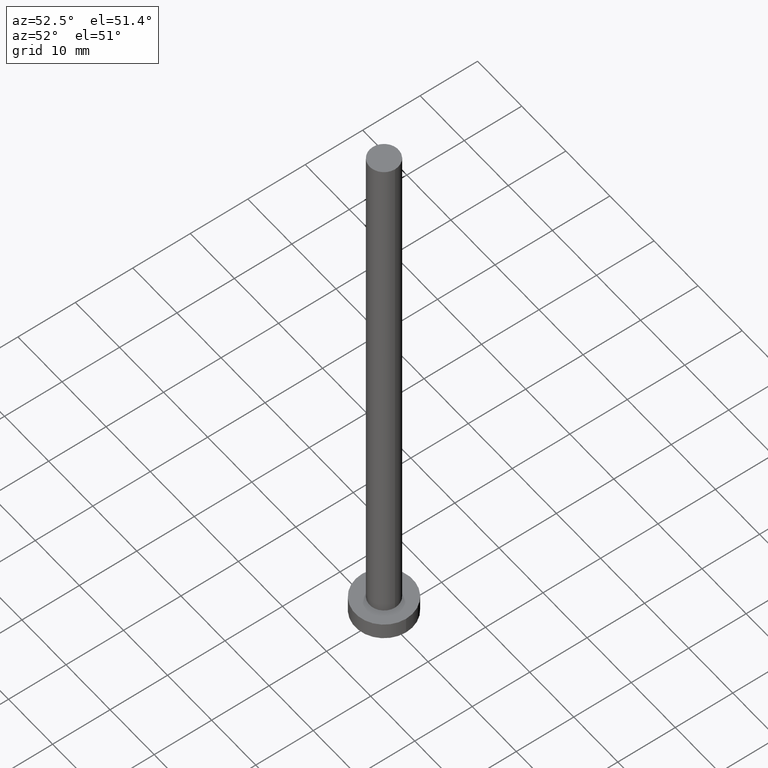
[diagram: clean part render]
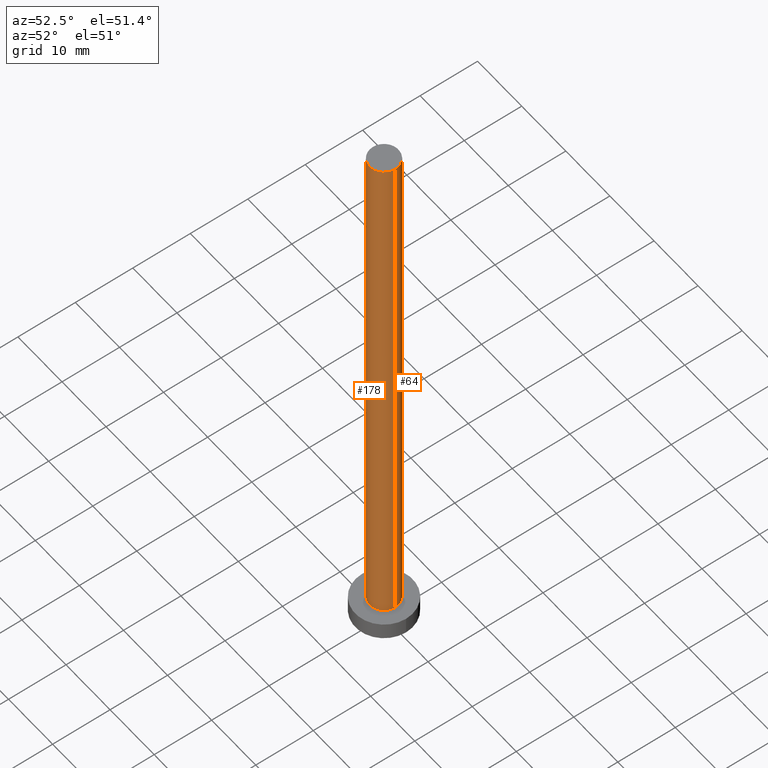
[diagram: same view with one multi-face feature highlighted, each face labeled with its STEP entity id]
A machine part, auxiliary view. The highlighted faces form ONE feature: a constant-radius fillet chain: 2 tangent blend faces with common blend radius 2.5 mm. The faces share edges in the B-rep.
Their STEP definitions:
[1] entity #64 (Cylinder):
#6 = AXIS2_PLACEMENT_3D ( 'NONE', #8, #81, #156 ) ;
#8 = CARTESIAN_POINT ( 'NONE',  ( 0.000000000000000000, 0.000000000000000000, 100.0000000000000000 ) ) ;
#11 = ORIENTED_EDGE ( 'NONE', *, *, #119, .T. ) ;
#14 = CIRCLE ( 'NONE', #185, 2.500000000000000000 ) ;
#17 = DIRECTION ( 'NONE',  ( -0.000000000000000000, -0.000000000000000000, -1.000000000000000000 ) ) ;
#22 = VECTOR ( 'NONE', #242, 1000.000000000000000 ) ;
#29 = LINE ( 'NONE', #107, #22 ) ;
#30 = CARTESIAN_POINT ( 'NONE',  ( 2.500000000000000000, 3.061616997868382648E-16, 3.000000000000000000 ) ) ;
#42 = VERTEX_POINT ( 'NONE', #177 ) ;
#44 = FACE_OUTER_BOUND ( 'NONE', #102, .T. ) ;
#59 = EDGE_CURVE ( 'NONE', #42, #147, #29, .T. ) ;
#64 = ADVANCED_FACE ( 'NONE', ( #44 ), #122, .T. ) ;
#81 = DIRECTION ( 'NONE',  ( -0.000000000000000000, -0.000000000000000000, -1.000000000000000000 ) ) ;
#84 = VERTEX_POINT ( 'NONE', #110 ) ;
#91 = AXIS2_PLACEMENT_3D ( 'NONE', #162, #245, #192 ) ;
#102 = EDGE_LOOP ( 'NONE', ( #214, #203, #11, #251 ) ) ;
#107 = CARTESIAN_POINT ( 'NONE',  ( -2.500000000000000000, 0.000000000000000000, 100.0000000000000000 ) ) ;
#109 = EDGE_CURVE ( 'NONE', #84, #161, #189, .T. ) ;
#110 = CARTESIAN_POINT ( 'NONE',  ( 2.500000000000000000, 3.061616997868382648E-16, 100.0000000000000000 ) ) ;
#119 = EDGE_CURVE ( 'NONE', #161, #147, #14, .T. ) ;
#122 = CYLINDRICAL_SURFACE ( 'NONE', #6, 2.500000000000000000 ) ;
#132 = DIRECTION ( 'NONE',  ( 1.000000000000000000, 0.000000000000000000, 0.000000000000000000 ) ) ;
#145 = DIRECTION ( 'NONE',  ( 0.000000000000000000, 0.000000000000000000, 1.000000000000000000 ) ) ;
#147 = VERTEX_POINT ( 'NONE', #205 ) ;
#156 = DIRECTION ( 'NONE',  ( -1.000000000000000000, 0.000000000000000000, 0.000000000000000000 ) ) ;
#159 = CIRCLE ( 'NONE', #91, 2.500000000000000000 ) ;
#161 = VERTEX_POINT ( 'NONE', #30 ) ;
#162 = CARTESIAN_POINT ( 'NONE',  ( 0.000000000000000000, 0.000000000000000000, 100.0000000000000000 ) ) ;
#177 = CARTESIAN_POINT ( 'NONE',  ( -2.500000000000000000, 0.000000000000000000, 100.0000000000000000 ) ) ;
#185 = AXIS2_PLACEMENT_3D ( 'NONE', #224, #145, #132 ) ;
#189 = LINE ( 'NONE', #252, #198 ) ;
#192 = DIRECTION ( 'NONE',  ( 1.000000000000000000, 0.000000000000000000, 0.000000000000000000 ) ) ;
#198 = VECTOR ( 'NONE', #17, 1000.000000000000000 ) ;
#199 = EDGE_CURVE ( 'NONE', #84, #42, #159, .T. ) ;
#203 = ORIENTED_EDGE ( 'NONE', *, *, #109, .T. ) ;
#205 = CARTESIAN_POINT ( 'NONE',  ( -2.500000000000000000, 0.000000000000000000, 3.000000000000000000 ) ) ;
#214 = ORIENTED_EDGE ( 'NONE', *, *, #199, .F. ) ;
#224 = CARTESIAN_POINT ( 'NONE',  ( 0.000000000000000000, 0.000000000000000000, 3.000000000000000000 ) ) ;
#242 = DIRECTION ( 'NONE',  ( -0.000000000000000000, -0.000000000000000000, -1.000000000000000000 ) ) ;
#245 = DIRECTION ( 'NONE',  ( 0.000000000000000000, 0.000000000000000000, 1.000000000000000000 ) ) ;
#251 = ORIENTED_EDGE ( 'NONE', *, *, #59, .F. ) ;
#252 = CARTESIAN_POINT ( 'NONE',  ( 2.500000000000000000, 3.061616997868382648E-16, 100.0000000000000000 ) ) ;
[2] entity #178 (Cylinder):
#5 = ORIENTED_EDGE ( 'NONE', *, *, #215, .F. ) ;
#17 = DIRECTION ( 'NONE',  ( -0.000000000000000000, -0.000000000000000000, -1.000000000000000000 ) ) ;
#22 = VECTOR ( 'NONE', #242, 1000.000000000000000 ) ;
#29 = LINE ( 'NONE', #107, #22 ) ;
#30 = CARTESIAN_POINT ( 'NONE',  ( 2.500000000000000000, 3.061616997868382648E-16, 3.000000000000000000 ) ) ;
#32 = DIRECTION ( 'NONE',  ( -1.000000000000000000, 0.000000000000000000, 0.000000000000000000 ) ) ;
#42 = VERTEX_POINT ( 'NONE', #177 ) ;
#47 = ORIENTED_EDGE ( 'NONE', *, *, #109, .F. ) ;
#57 = CARTESIAN_POINT ( 'NONE',  ( 0.000000000000000000, 0.000000000000000000, 100.0000000000000000 ) ) ;
#59 = EDGE_CURVE ( 'NONE', #42, #147, #29, .T. ) ;
#67 = EDGE_CURVE ( 'NONE', #147, #161, #133, .T. ) ;
#74 = DIRECTION ( 'NONE',  ( -0.000000000000000000, -0.000000000000000000, -1.000000000000000000 ) ) ;
#84 = VERTEX_POINT ( 'NONE', #110 ) ;
#88 = FACE_OUTER_BOUND ( 'NONE', #244, .T. ) ;
#90 = ORIENTED_EDGE ( 'NONE', *, *, #67, .T. ) ;
#101 = CIRCLE ( 'NONE', #169, 2.500000000000000000 ) ;
#107 = CARTESIAN_POINT ( 'NONE',  ( -2.500000000000000000, 0.000000000000000000, 100.0000000000000000 ) ) ;
#109 = EDGE_CURVE ( 'NONE', #84, #161, #189, .T. ) ;
#110 = CARTESIAN_POINT ( 'NONE',  ( 2.500000000000000000, 3.061616997868382648E-16, 100.0000000000000000 ) ) ;
#116 = DIRECTION ( 'NONE',  ( 0.000000000000000000, 0.000000000000000000, 1.000000000000000000 ) ) ;
#133 = CIRCLE ( 'NONE', #218, 2.500000000000000000 ) ;
#139 = DIRECTION ( 'NONE',  ( 1.000000000000000000, 0.000000000000000000, 0.000000000000000000 ) ) ;
#147 = VERTEX_POINT ( 'NONE', #205 ) ;
#161 = VERTEX_POINT ( 'NONE', #30 ) ;
#169 = AXIS2_PLACEMENT_3D ( 'NONE', #212, #175, #139 ) ;
#172 = AXIS2_PLACEMENT_3D ( 'NONE', #57, #74, #32 ) ;
#175 = DIRECTION ( 'NONE',  ( 0.000000000000000000, 0.000000000000000000, 1.000000000000000000 ) ) ;
#177 = CARTESIAN_POINT ( 'NONE',  ( -2.500000000000000000, 0.000000000000000000, 100.0000000000000000 ) ) ;
#178 = ADVANCED_FACE ( 'NONE', ( #88 ), #255, .T. ) ;
#189 = LINE ( 'NONE', #252, #198 ) ;
#198 = VECTOR ( 'NONE', #17, 1000.000000000000000 ) ;
#205 = CARTESIAN_POINT ( 'NONE',  ( -2.500000000000000000, 0.000000000000000000, 3.000000000000000000 ) ) ;
#212 = CARTESIAN_POINT ( 'NONE',  ( 0.000000000000000000, 0.000000000000000000, 100.0000000000000000 ) ) ;
#215 = EDGE_CURVE ( 'NONE', #42, #84, #101, .T. ) ;
#218 = AXIS2_PLACEMENT_3D ( 'NONE', #225, #116, #247 ) ;
#221 = ORIENTED_EDGE ( 'NONE', *, *, #59, .T. ) ;
#225 = CARTESIAN_POINT ( 'NONE',  ( 0.000000000000000000, 0.000000000000000000, 3.000000000000000000 ) ) ;
#242 = DIRECTION ( 'NONE',  ( -0.000000000000000000, -0.000000000000000000, -1.000000000000000000 ) ) ;
#244 = EDGE_LOOP ( 'NONE', ( #47, #5, #221, #90 ) ) ;
#247 = DIRECTION ( 'NONE',  ( 1.000000000000000000, 0.000000000000000000, 0.000000000000000000 ) ) ;
#252 = CARTESIAN_POINT ( 'NONE',  ( 2.500000000000000000, 3.061616997868382648E-16, 100.0000000000000000 ) ) ;
#255 = CYLINDRICAL_SURFACE ( 'NONE', #172, 2.500000000000000000 ) ;